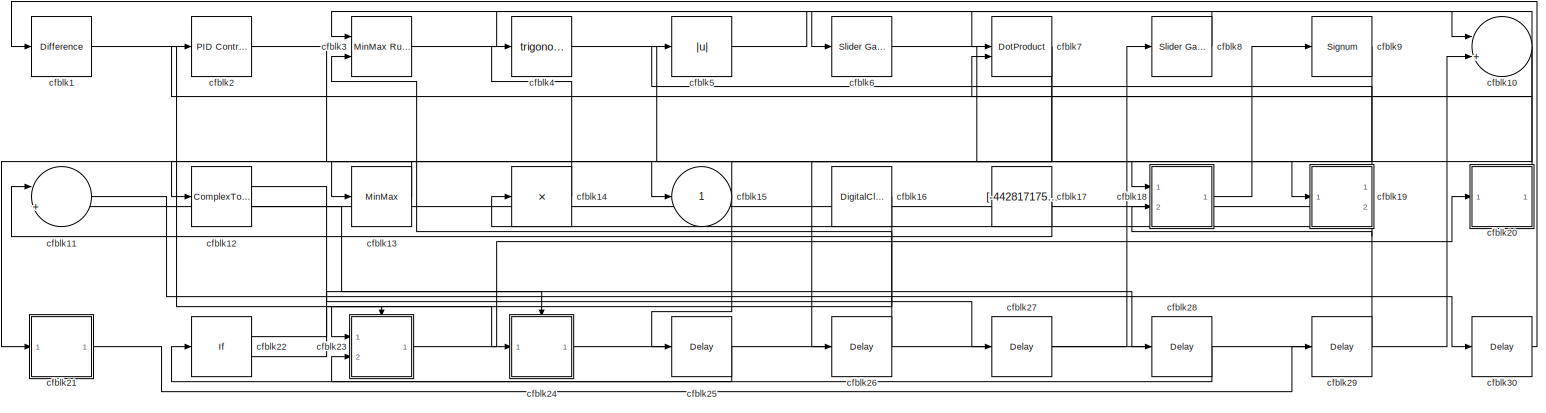
[diagram: root canvas - part 1/1, most of the canvas]
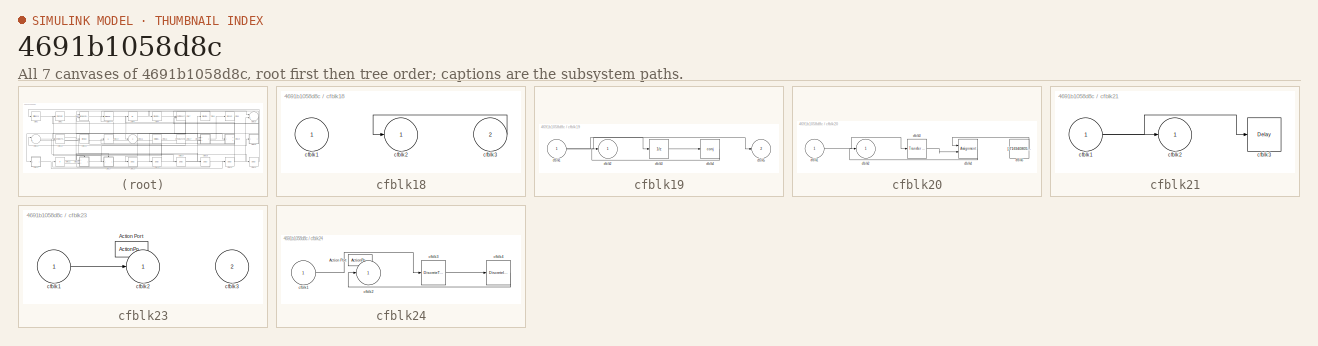
[diagram: thumbnail index - all 7 canvases of the model, root first then tree order]
MODEL slx_4691b1058d8c
KIND model
CONFIG AbsTol = auto
CONFIG EnableMultiTasking = off
CONFIG FixedStep = auto
CONFIG MaxStep = auto
CONFIG MinStep = auto
CONFIG RelTol = 1e-3
CONFIG SampleTimeConstraint = Unconstrained
CONFIG SolverName = VariableStepAuto
CONFIG StartTime = 0.0
CONFIG StopTime = 10.0
BLOCK [Reference] cfblk1  REF=simulink/Discrete/Difference
  Ports = [1, 1]
  SourceBlock = simulink/Discrete/Difference
  SourceProductBaseCode = SL
  SourceType = Difference
BLOCK [Sum] cfblk10
  Inputs = |++
  Ports = [2, 1]
BLOCK [Sum] cfblk11
  Inputs = |++
  Ports = [2, 1]
BLOCK [ComplexToMagnitudeAngle] cfblk12
  Ports = [1, 2]
BLOCK [MinMax] cfblk13
  Function = max
  Ports = [1, 1]
BLOCK [Product] cfblk14
  Inputs = *
  Ports = [1, 1]
BLOCK [Outport] cfblk15
BLOCK [DigitalClock] cfblk16
BLOCK [Constant] cfblk17
  SampleTime = 1
  Value = [-442817175.985097]
BLOCK [SubSystem] cfblk18
  Ports = [2, 1]
  RequestExecContextInheritance = off
BLOCK [Inport] cfblk18/cfblk1
BLOCK [Outport] cfblk18/cfblk2
BLOCK [Inport] cfblk18/cfblk3
  Port = 2
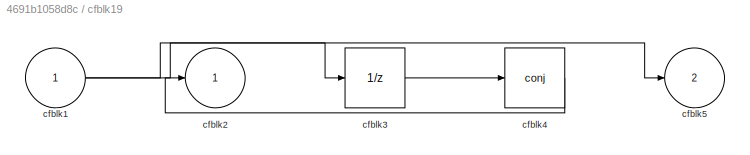
BLOCK [SubSystem] cfblk19
  Ports = [1, 2]
  RequestExecContextInheritance = off
BLOCK [Inport] cfblk19/cfblk1
BLOCK [Outport] cfblk19/cfblk2
BLOCK [UnitDelay] cfblk19/cfblk3
  HasFrameUpgradeWarning = on
BLOCK [Math] cfblk19/cfblk4
  Operator = conj
  Ports = [1, 1]
BLOCK [Outport] cfblk19/cfblk5
  Port = 2
BLOCK [Reference] cfblk2  REF=slpidlib/PID Controller
  Ports = [1, 1]
  SourceBlock = slpidlib/PID Controller
  SourceProductBaseCode = SL
  SourceType = PID 1dof
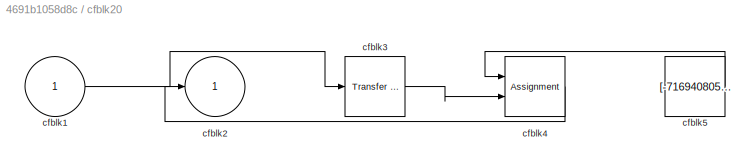
BLOCK [SubSystem] cfblk20
  Ports = [1, 1]
  RequestExecContextInheritance = off
BLOCK [Inport] cfblk20/cfblk1
BLOCK [Outport] cfblk20/cfblk2
BLOCK [Reference] cfblk20/cfblk3  REF=simulink/Discrete/Transfer Fcn
Lead or Lag
  Ports = [1, 1]
  SourceBlock = simulink/Discrete/Transfer Fcn\nLead or Lag
  SourceProductBaseCode = SL
  SourceType = Lead or Lag Compensator
BLOCK [Assignment] cfblk20/cfblk4
  DiagnosticForDimensions = Warning
  IndexOptions = Index vector (dialog)
  Indices = 1
  OutputSizes = 1
  Ports = [2, 1]
BLOCK [Constant] cfblk20/cfblk5
  SampleTime = 1
  Value = [-716940805.614323]
BLOCK [SubSystem] cfblk21
  Ports = [1, 1]
  RequestExecContextInheritance = off
BLOCK [Inport] cfblk21/cfblk1
BLOCK [Outport] cfblk21/cfblk2
BLOCK [Delay] cfblk21/cfblk3
  InputPortMap = u0
  Ports = [1, 1]
  SampleTime = 1
BLOCK [If] cfblk22
  IfExpression = u1 >= 0
  Ports = [1, 2]
  SampleTime = 1
BLOCK [SubSystem] cfblk23
  Ports = [2, 1, 0, 0, 0, 0, 0, 1]
  RequestExecContextInheritance = off
  TreatAsAtomicUnit = on
BLOCK [ActionPort] cfblk23/Action Port
  ActionPortLabel = if(u1 >= 0)
BLOCK [Inport] cfblk23/cfblk1
BLOCK [Outport] cfblk23/cfblk2
BLOCK [Inport] cfblk23/cfblk3
  Port = 2
BLOCK [SubSystem] cfblk24
  Ports = [1, 1, 0, 0, 0, 0, 0, 1]
  RequestExecContextInheritance = off
  TreatAsAtomicUnit = on
BLOCK [ActionPort] cfblk24/Action Port
  ActionPortLabel = else
BLOCK [Inport] cfblk24/cfblk1
BLOCK [Outport] cfblk24/cfblk2
BLOCK [DiscreteTransferFcn] cfblk24/cfblk3
  InputPortMap = u0
  Ports = [1, 1]
BLOCK [DiscreteIntegrator] cfblk24/cfblk4
  ICPrevOutput = DiscIntNeverNeededParam
  ICPrevScaledInput = DiscIntNeverNeededParam
  InitialConditionSetting = Auto
  Ports = [1, 1]
  SampleTime = -1
BLOCK [Delay] cfblk25
  InputPortMap = u0
  Ports = [1, 1]
  SampleTime = 1
BLOCK [Delay] cfblk26
  InputPortMap = u0
  Ports = [1, 1]
  SampleTime = 1
BLOCK [Delay] cfblk27
  InputPortMap = u0
  Ports = [1, 1]
  SampleTime = 1
BLOCK [Delay] cfblk28
  InputPortMap = u0
  Ports = [1, 1]
  SampleTime = 1
BLOCK [Delay] cfblk29
  InputPortMap = u0
  Ports = [1, 1]
  SampleTime = 1
BLOCK [Reference] cfblk3  REF=simulink/Math
Operations/MinMax
Running
Resettable
  Ports = [2, 1]
  SourceBlock = simulink/Math\nOperations/MinMax\nRunning\nResettable
  SourceProductBaseCode = SL
  SourceType = MinMax Running Resettable
BLOCK [Delay] cfblk30
  InputPortMap = u0
  Ports = [1, 1]
  SampleTime = 1
BLOCK [Trigonometry] cfblk4
  Ports = [1, 1]
BLOCK [Abs] cfblk5
  SaturateOnIntegerOverflow = off
BLOCK [Reference] cfblk6  REF=simulink/Math
Operations/Slider
Gain
  Ports = [1, 1]
  SourceBlock = simulink/Math\nOperations/Slider\nGain
  SourceProductBaseCode = SL
  SourceType = Slider Gain
BLOCK [DotProduct] cfblk7
  OutDataTypeStr = Inherit: Inherit via internal rule
BLOCK [Reference] cfblk8  REF=simulink/Math
Operations/Slider
Gain
  Ports = [1, 1]
  SourceBlock = simulink/Math\nOperations/Slider\nGain
  SourceProductBaseCode = SL
  SourceType = Slider Gain
BLOCK [Signum] cfblk9
NET cfblk10:1 -> cfblk25:1, cfblk7:1, cfblk7:2
LINE cfblk11:1 -> cfblk30:1
LINE cfblk12:1 -> cfblk27:1
LINE cfblk12:2 -> cfblk28:1
LINE cfblk13:1 -> cfblk21:1
LINE cfblk14:1 -> cfblk4:1
LINE cfblk16:1 -> cfblk23:1
LINE cfblk17:1 -> cfblk11:1
LINE cfblk18/cfblk3:1 -> cfblk18/cfblk2:1
LINE cfblk18:1 -> cfblk9:1
NET cfblk19/cfblk1:1 -> cfblk19/cfblk3:1, cfblk19/cfblk5:1
LINE cfblk19/cfblk3:1 -> cfblk19/cfblk4:1
LINE cfblk19/cfblk4:1 -> cfblk19/cfblk2:1
LINE cfblk19:1 -> cfblk5:1
NET cfblk19:2 -> cfblk11:2, cfblk14:1
LINE cfblk1:1 -> cfblk24:1
LINE cfblk20/cfblk1:1 -> cfblk20/cfblk3:1
LINE cfblk20/cfblk3:1 -> cfblk20/cfblk4:2
LINE cfblk20/cfblk4:1 -> cfblk20/cfblk2:1
LINE cfblk20/cfblk5:1 -> cfblk20/cfblk4:1
LINE cfblk20:1 -> cfblk2:1
NET cfblk21/cfblk1:1 -> cfblk21/cfblk2:1, cfblk21/cfblk3:1
LINE cfblk21:1 -> cfblk29:1
LINE cfblk22:1 -> cfblk23:ifaction
LINE cfblk22:2 -> cfblk24:ifaction
LINE cfblk23/cfblk1:1 -> cfblk23/cfblk2:1
LINE cfblk23:1 -> cfblk20:1
LINE cfblk24/cfblk1:1 -> cfblk24/cfblk3:1
LINE cfblk24/cfblk3:1 -> cfblk24/cfblk4:1
LINE cfblk24/cfblk4:1 -> cfblk24/cfblk2:1
LINE cfblk24:1 -> cfblk8:1
LINE cfblk25:1 -> cfblk22:1
LINE cfblk26:1 -> cfblk3:2
LINE cfblk27:1 -> cfblk10:2
LINE cfblk28:1 -> cfblk23:2
LINE cfblk29:1 -> cfblk18:2
LINE cfblk2:1 -> cfblk15:1
LINE cfblk30:1 -> cfblk1:1
LINE cfblk3:1 -> cfblk6:1
LINE cfblk4:1 -> cfblk18:1
LINE cfblk5:1 -> cfblk10:1
LINE cfblk6:1 -> cfblk19:1
NET cfblk7:1 -> cfblk12:1, cfblk26:1
LINE cfblk8:1 -> cfblk3:1
LINE cfblk9:1 -> cfblk13:1
note: NET lines group one-source signal fan-out (src -> all destinations, sorted); 1:1 wires keep LINE
